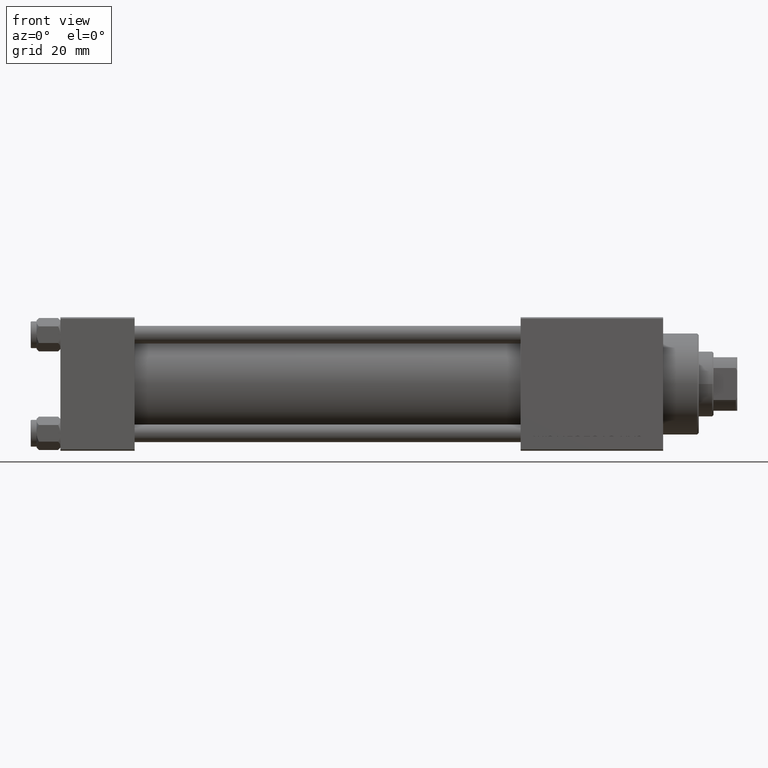
[diagram: clean part render]
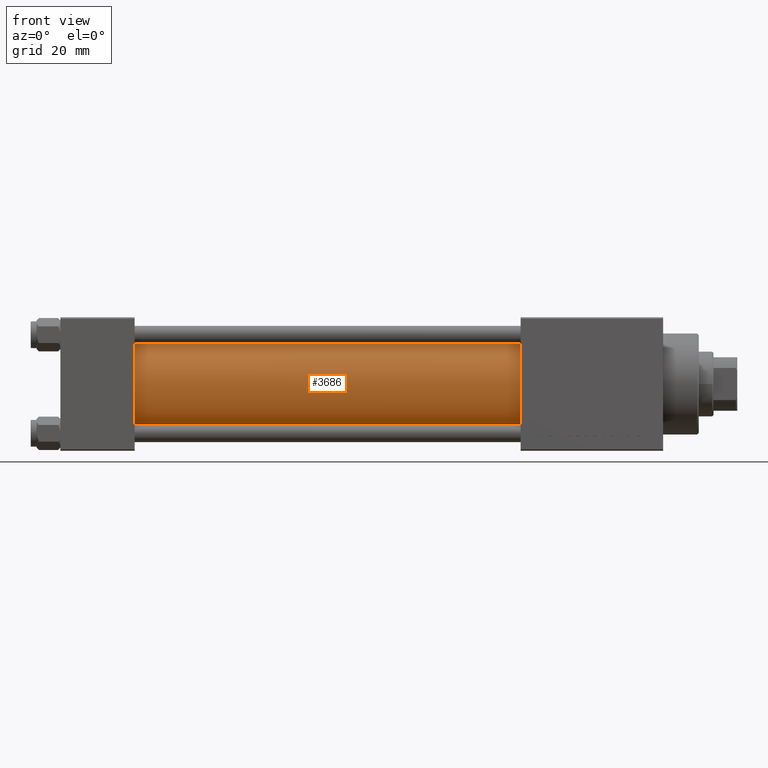
[diagram: same view with one face highlighted and labeled with its STEP entity id]
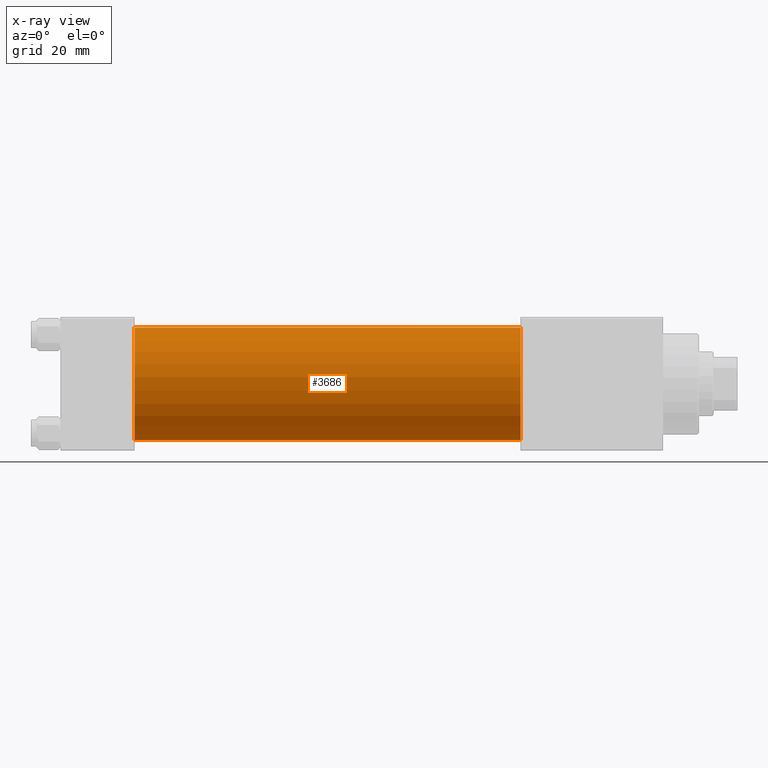
[diagram: x-ray of the same camera — body ghosted, the highlighted face saturated]
A machine part, front view. The second image highlights one B-rep face of the part: STEP entity #3686.
The next image is the same camera in x-ray: the body ghosted, the highlighted face saturated — about 0% of this face is hidden behind the body in this view.
In plain terms, the highlighted cylindrical surface (partial cylindrical patch) has radius 19 mm, axis along (-1, -0, -0).
Its self-contained STEP definition (entity closure, byte-faithful):
#895 = DIRECTION ( 'NONE',  ( 0.000000000000000000, 0.000000000000000000, 1.000000000000000000 ) ) ;
#1403 = CARTESIAN_POINT ( 'NONE',  ( 155.0000000000000000, -2.752562955852396712E-16, -19.00000000000000000 ) ) ;
#2803 = ORIENTED_EDGE ( 'NONE', *, *, #14624, .F. ) ;
#2881 = AXIS2_PLACEMENT_3D ( 'NONE', #18379, #50045, #14486 ) ;
#3686 = ADVANCED_FACE ( 'NONE', ( #11062 ), #42722, .T. ) ;
#6260 = CARTESIAN_POINT ( 'NONE',  ( 155.0000000000000000, -2.602085213965210642E-15, 19.00000000000000000 ) ) ;
#6836 = VECTOR ( 'NONE', #7686, 1000.000000000000000 ) ;
#7686 = DIRECTION ( 'NONE',  ( -1.000000000000000000, -0.000000000000000000, -0.000000000000000000 ) ) ;
#8901 = VERTEX_POINT ( 'NONE', #16426 ) ;
#10726 = EDGE_CURVE ( 'NONE', #47899, #42706, #36154, .T. ) ;
#11062 = FACE_OUTER_BOUND ( 'NONE', #46745, .T. ) ;
#11502 = ORIENTED_EDGE ( 'NONE', *, *, #44079, .T. ) ;
#14486 = DIRECTION ( 'NONE',  ( 0.000000000000000000, 0.000000000000000000, -1.000000000000000000 ) ) ;
#14624 = EDGE_CURVE ( 'NONE', #8901, #47899, #18608, .T. ) ;
#15964 = AXIS2_PLACEMENT_3D ( 'NONE', #32296, #48401, #895 ) ;
#16426 = CARTESIAN_POINT ( 'NONE',  ( 155.0000000000000000, -2.602085213965210642E-15, 19.00000000000000000 ) ) ;
#18195 = DIRECTION ( 'NONE',  ( -1.000000000000000000, -0.000000000000000000, -0.000000000000000000 ) ) ;
#18379 = CARTESIAN_POINT ( 'NONE',  ( 155.0000000000000000, -2.602085213965210642E-15, 0.000000000000000000 ) ) ;
#18608 = CIRCLE ( 'NONE', #2881, 19.00000000000000000 ) ;
#22981 = CARTESIAN_POINT ( 'NONE',  ( 155.0000000000000000, -2.602085213965210642E-15, 0.000000000000000000 ) ) ;
#25881 = CIRCLE ( 'NONE', #15964, 19.00000000000000000 ) ;
#26507 = ORIENTED_EDGE ( 'NONE', *, *, #43677, .T. ) ;
#30071 = VECTOR ( 'NONE', #18195, 1000.000000000000000 ) ;
#32296 = CARTESIAN_POINT ( 'NONE',  ( 24.99999999999999289, -2.602085213965210642E-15, 0.000000000000000000 ) ) ;
#33481 = CARTESIAN_POINT ( 'NONE',  ( 24.99999999999999289, -2.602085213965210642E-15, 19.00000000000000000 ) ) ;
#34924 = DIRECTION ( 'NONE',  ( -1.000000000000000000, -0.000000000000000000, -0.000000000000000000 ) ) ;
#36154 = LINE ( 'NONE', #1403, #6836 ) ;
#36176 = CARTESIAN_POINT ( 'NONE',  ( 24.99999999999999289, -2.752562955852396712E-16, -19.00000000000000000 ) ) ;
#39885 = AXIS2_PLACEMENT_3D ( 'NONE', #22981, #34924, #50772 ) ;
#41391 = CARTESIAN_POINT ( 'NONE',  ( 155.0000000000000000, -2.752562955852396712E-16, -19.00000000000000000 ) ) ;
#42706 = VERTEX_POINT ( 'NONE', #36176 ) ;
#42722 = CYLINDRICAL_SURFACE ( 'NONE', #39885, 19.00000000000000000 ) ;
#43677 = EDGE_CURVE ( 'NONE', #51379, #42706, #25881, .T. ) ;
#44079 = EDGE_CURVE ( 'NONE', #8901, #51379, #49112, .T. ) ;
#46745 = EDGE_LOOP ( 'NONE', ( #49140, #2803, #11502, #26507 ) ) ;
#47899 = VERTEX_POINT ( 'NONE', #41391 ) ;
#48401 = DIRECTION ( 'NONE',  ( 1.000000000000000000, -0.000000000000000000, 0.000000000000000000 ) ) ;
#49112 = LINE ( 'NONE', #6260, #30071 ) ;
#49140 = ORIENTED_EDGE ( 'NONE', *, *, #10726, .F. ) ;
#50045 = DIRECTION ( 'NONE',  ( 1.000000000000000000, 0.000000000000000000, 0.000000000000000000 ) ) ;
#50772 = DIRECTION ( 'NONE',  ( 0.000000000000000000, 0.000000000000000000, 1.000000000000000000 ) ) ;
#51379 = VERTEX_POINT ( 'NONE', #33481 ) ;